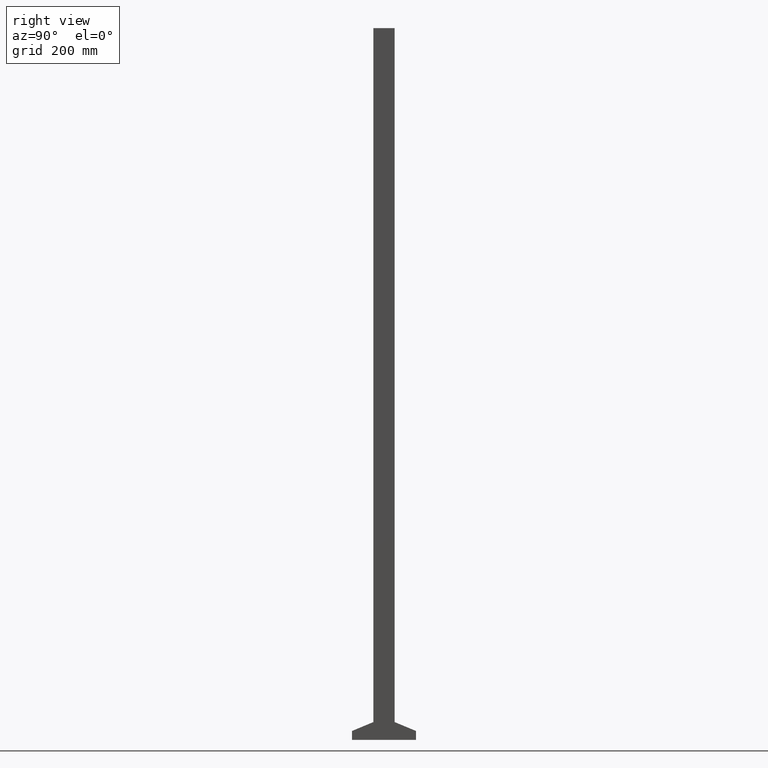
[diagram: clean part render]
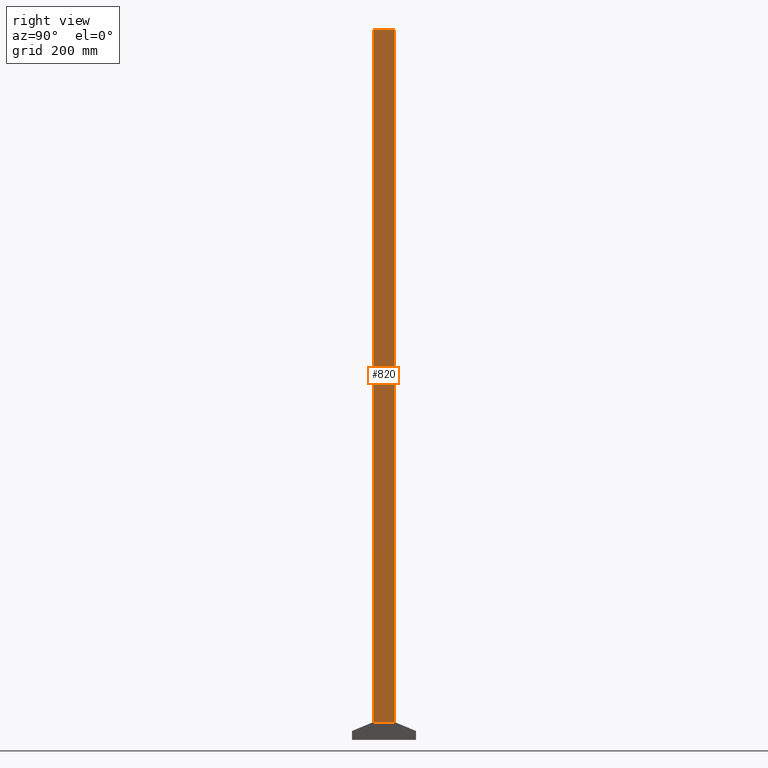
[diagram: same view with one face highlighted and labeled with its STEP entity id]
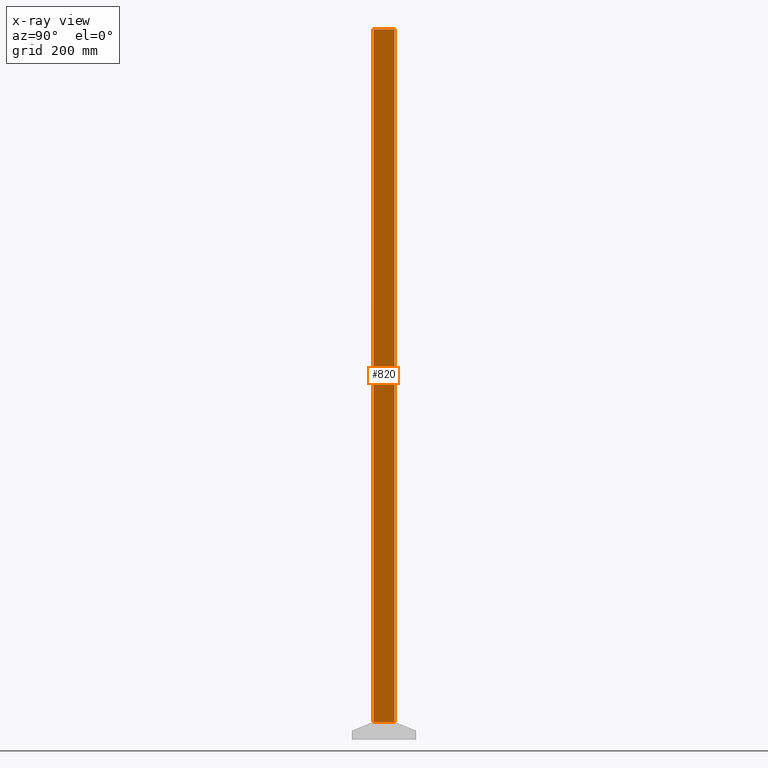
[diagram: x-ray of the same camera — body ghosted, the highlighted face saturated]
A machine part, right view. The second image highlights one B-rep face of the part: STEP entity #820.
The next image is the same camera in x-ray: the body ghosted, the highlighted face saturated — about 0% of this face is hidden behind the body in this view.
In plain terms, the highlighted planar face has unit normal (1, 0, 0).
Its self-contained STEP definition (entity closure, byte-faithful):
#128=LINE('',#2847,#222);
#132=LINE('',#2856,#226);
#135=LINE('',#2862,#229);
#138=LINE('',#2868,#232);
#222=VECTOR('',#2428,1.);
#226=VECTOR('',#2434,1.);
#229=VECTOR('',#2439,1.);
#232=VECTOR('',#2444,1.);
#605=PLANE('',#1982);
#694=FACE_OUTER_BOUND('',#1105,.T.);
#820=ADVANCED_FACE('',(#694),#605,.T.);
#1105=EDGE_LOOP('',(#1408,#1409,#1410,#1411));
#1408=ORIENTED_EDGE('',*,*,#1702,.T.);
#1409=ORIENTED_EDGE('',*,*,#1706,.T.);
#1410=ORIENTED_EDGE('',*,*,#1709,.T.);
#1411=ORIENTED_EDGE('',*,*,#1712,.T.);
#1548=VERTEX_POINT('',#2848);
#1549=VERTEX_POINT('',#2849);
#1552=VERTEX_POINT('',#2857);
#1554=VERTEX_POINT('',#2863);
#1702=EDGE_CURVE('',#1548,#1549,#128,.T.);
#1706=EDGE_CURVE('',#1549,#1552,#132,.T.);
#1709=EDGE_CURVE('',#1552,#1554,#135,.T.);
#1712=EDGE_CURVE('',#1554,#1548,#138,.T.);
#1982=AXIS2_PLACEMENT_3D('',#2872,#2450,#2451);
#2428=DIRECTION('',(0.,0.,-1.));
#2434=DIRECTION('',(-1.,0.,0.));
#2439=DIRECTION('',(1.78286071528963E-18,0.,1.));
#2444=DIRECTION('',(1.,0.,0.));
#2450=DIRECTION('',(0.,1.,0.));
#2451=DIRECTION('',(0.,0.,1.));
#2847=CARTESIAN_POINT('',(30.,30.,1996.));
#2848=CARTESIAN_POINT('',(30.,30.,1996.));
#2849=CARTESIAN_POINT('',(30.,30.,50.));
#2856=CARTESIAN_POINT('',(30.,30.,50.));
#2857=CARTESIAN_POINT('',(-30.,30.,50.));
#2862=CARTESIAN_POINT('',(-30.,30.,50.));
#2863=CARTESIAN_POINT('',(-30.,30.,1996.));
#2868=CARTESIAN_POINT('',(-30.,30.,1996.));
#2872=CARTESIAN_POINT('',(0.,30.,0.));